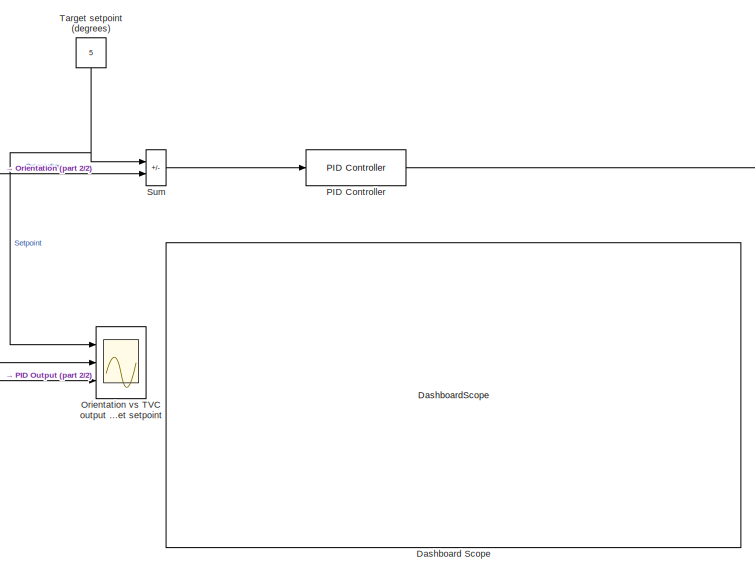
[diagram: root canvas - part 1/2, right side, full height]
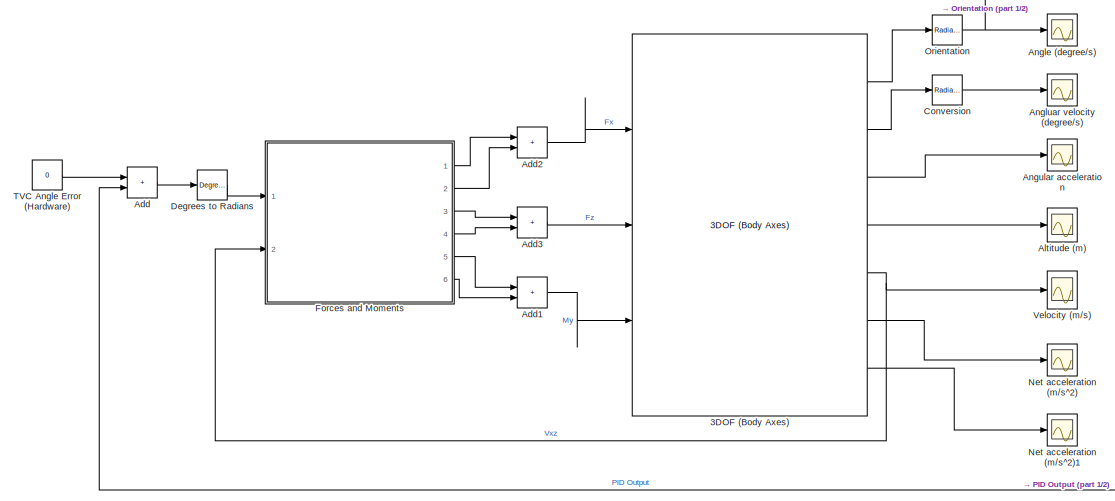
[diagram: root canvas - part 2/2, middle left region]
MODEL slx_54727770b3d1
KIND model
CONFIG AbsTol = auto
CONFIG EnableMultiTasking = off
CONFIG FixedStep = auto
CONFIG MaxStep = auto
CONFIG MinStep = auto
CONFIG RelTol = 1e-3
CONFIG SampleTimeConstraint = Unconstrained
CONFIG SolverName = VariableStepAuto
CONFIG StartTime = 0.0
CONFIG StopTime = 3.5
BLOCK [Reference] 3DOF (Body Axes)  REF=shared3dof/3DOF (Body Axes)
  Ports = [3, 7]
  SourceBlock = shared3dof/3DOF (Body Axes)
  SourceProductBaseCode = AE,PW,MT,UV,VE,VP
  SourceType = 3DOF EoM
BLOCK [Sum] Add
  IconShape = rectangular
  Ports = [2, 1]
BLOCK [Sum] Add1
  IconShape = rectangular
  Ports = [2, 1]
BLOCK [Sum] Add2
  IconShape = rectangular
  Ports = [2, 1]
BLOCK [Sum] Add3
  IconShape = rectangular
  Ports = [2, 1]
BLOCK [Scope] Altitude (m)
  Floating = off
  NumInputPorts = 1
  Ports = [1]
  ScopeSpecificationString = Simulink.scopes.TimeScopeBlockCfg('CurrentConfiguration', extmgr.ConfigurationSet(extmgr.Configuration('Core','General UI',true),extmgr.Configuration('Core','Source UI',true),extmgr.Configuration('Sources','WiredSimulink',true,'DataLoggingVariableName','ScopeData5'),extmgr.Configuration('Visuals','Time Domain',true,'SerializedDisplays',{struct('MinYLimReal','-2.34632','MaxYLimReal','19.45799','YLa...<+1545ch>
BLOCK [Scope] Angle (degree//s)
  Floating = off
  NumInputPorts = 1
  Ports = [1]
  ScopeSpecificationString = Simulink.scopes.TimeScopeBlockCfg('CurrentConfiguration', extmgr.ConfigurationSet(extmgr.Configuration('Core','General UI',true),extmgr.Configuration('Core','Source UI',true),extmgr.Configuration('Sources','WiredSimulink',true),extmgr.Configuration('Visuals','Time Domain',true,'SerializedDisplays',{struct('MinYLimReal','-1.09675','MaxYLimReal','9.87075','YLabelReal','','MinYLimMag','0.00000','MaxY...<+1385ch>
BLOCK [Scope] Angluar velocity (degree//s)
  Floating = off
  NumInputPorts = 1
  Ports = [1]
  ScopeSpecificationString = Simulink.scopes.TimeScopeBlockCfg('CurrentConfiguration', extmgr.ConfigurationSet(extmgr.Configuration('Core','General UI',true),extmgr.Configuration('Core','Source UI',true),extmgr.Configuration('Sources','WiredSimulink',true,'DataLoggingVariableName','ScopeData3'),extmgr.Configuration('Visuals','Time Domain',true,'SerializedDisplays',{struct('MinYLimReal','-4.14804','MaxYLimReal','23.08094','YLa...<+1377ch>
BLOCK [Scope] Angular acceleration
  Floating = off
  NumInputPorts = 1
  Ports = [1]
  ScopeSpecificationString = Simulink.scopes.TimeScopeBlockCfg('CurrentConfiguration', extmgr.ConfigurationSet(extmgr.Configuration('Core','General UI',true),extmgr.Configuration('Core','Source UI',true),extmgr.Configuration('Sources','WiredSimulink',true,'DataLoggingVariableName','ScopeData4'),extmgr.Configuration('Visuals','Time Domain',true,'SerializedDisplays',{struct('MinYLimReal','-2.2108','MaxYLimReal','9.02372','YLabe...<+1375ch>
BLOCK [Reference] Conversion  REF=simulink_extras/Transformations/Radians
to Degrees
  Ports = [1, 1]
  SourceBlock = simulink_extras/Transformations/Radians\nto Degrees
  SourceProductBaseCode = SL
  SourceType = RadiansToDegrees
BLOCK [DashboardScope] Dashboard Scope
BLOCK [Reference] Degrees to Radians  REF=simulink_extras/Transformations/Degrees to
Radians
  Ports = [1, 1]
  SourceBlock = simulink_extras/Transformations/Degrees to\nRadians
  SourceProductBaseCode = SL
  SourceType = DegreesToRadians
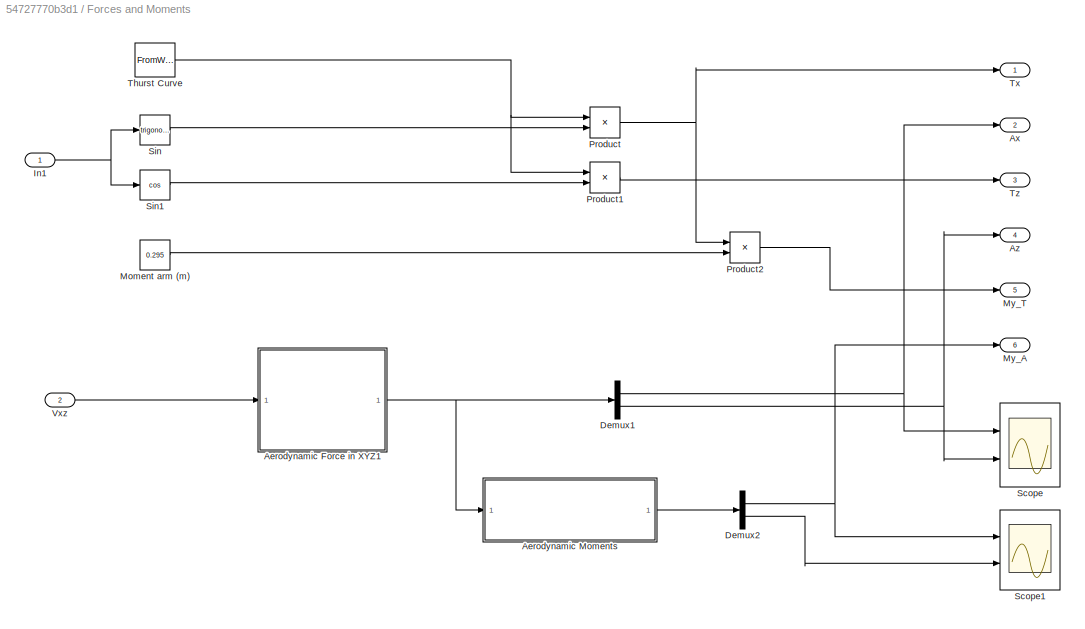
BLOCK [SubSystem] Forces and Moments
  Ports = [2, 6]
  RequestExecContextInheritance = off
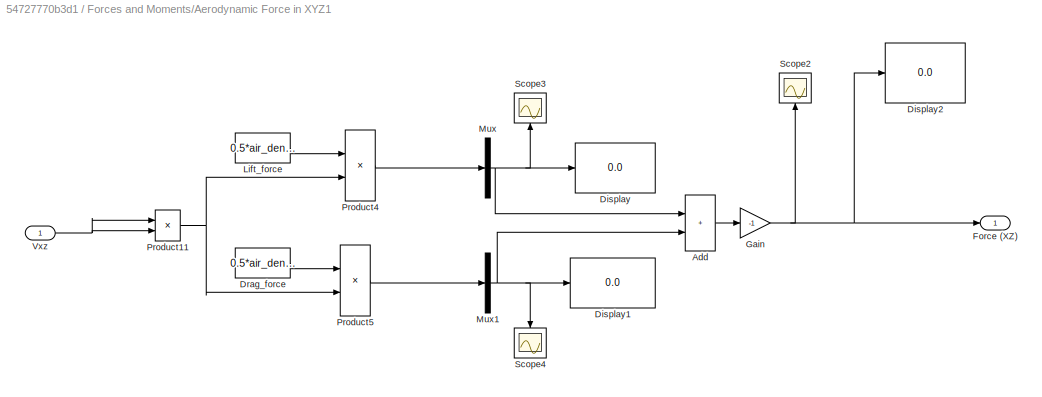
BLOCK [SubSystem] Forces and Moments/Aerodynamic Force in XYZ1
  Ports = [1, 1]
  RequestExecContextInheritance = off
BLOCK [Sum] Forces and Moments/Aerodynamic Force in XYZ1/Add
  IconShape = rectangular
  Ports = [2, 1]
BLOCK [Display] Forces and Moments/Aerodynamic Force in XYZ1/Display
  Decimation = 1
  Ports = [1]
BLOCK [Display] Forces and Moments/Aerodynamic Force in XYZ1/Display1
  Decimation = 1
  Ports = [1]
BLOCK [Display] Forces and Moments/Aerodynamic Force in XYZ1/Display2
  Decimation = 1
  Ports = [1]
BLOCK [Constant] Forces and Moments/Aerodynamic Force in XYZ1/Drag_force
  Value = 0.5*air_density*ref_area*Cd
BLOCK [Outport] Forces and Moments/Aerodynamic Force in XYZ1/Force (XZ)
BLOCK [Gain] Forces and Moments/Aerodynamic Force in XYZ1/Gain
  Gain = -1
BLOCK [Constant] Forces and Moments/Aerodynamic Force in XYZ1/Lift_force
  Value = 0.5*air_density*ref_area*Cl
BLOCK [Mux] Forces and Moments/Aerodynamic Force in XYZ1/Mux
  DisplayOption = bar
  Inputs = 1
  Ports = [1, 1]
BLOCK [Mux] Forces and Moments/Aerodynamic Force in XYZ1/Mux1
  DisplayOption = bar
  Inputs = 1
  Ports = [1, 1]
BLOCK [Product] Forces and Moments/Aerodynamic Force in XYZ1/Product11
  Ports = [2, 1]
BLOCK [Product] Forces and Moments/Aerodynamic Force in XYZ1/Product4
  Ports = [2, 1]
BLOCK [Product] Forces and Moments/Aerodynamic Force in XYZ1/Product5
  Ports = [2, 1]
BLOCK [Scope] Forces and Moments/Aerodynamic Force in XYZ1/Scope2
  Floating = off
  NameLocation = right
  NumInputPorts = 1
  Ports = [1]
  ScopeSpecificationString = Simulink.scopes.TimeScopeBlockCfg('CurrentConfiguration', extmgr.ConfigurationSet(extmgr.Configuration('Core','General UI',true),extmgr.Configuration('Core','Source UI',true),extmgr.Configuration('Sources','WiredSimulink',true,'DataLoggingVariableName','ScopeData4'),extmgr.Configuration('Visuals','Time Domain',true,'SerializedDisplays',{struct('MinYLimReal','-7.35516','MaxYLimReal','0.81724','YLab...<+1428ch>
BLOCK [Scope] Forces and Moments/Aerodynamic Force in XYZ1/Scope3
  Floating = off
  NameLocation = right
  NumInputPorts = 1
  Ports = [1]
  ScopeSpecificationString = Simulink.scopes.TimeScopeBlockCfg('CurrentConfiguration', extmgr.ConfigurationSet(extmgr.Configuration('Core','General UI',true),extmgr.Configuration('Core','Source UI',true),extmgr.Configuration('Sources','WiredSimulink',true,'DataLoggingVariableName','ScopeData1'),extmgr.Configuration('Visuals','Time Domain',true,'SerializedDisplays',{struct('MinYLimReal','-0.36776','MaxYLimReal','3.30982','YLab...<+1411ch>
BLOCK [Scope] Forces and Moments/Aerodynamic Force in XYZ1/Scope4
  Floating = off
  NameLocation = left
  NumInputPorts = 1
  Ports = [1]
  ScopeSpecificationString = Simulink.scopes.TimeScopeBlockCfg('CurrentConfiguration', extmgr.ConfigurationSet(extmgr.Configuration('Core','General UI',true),extmgr.Configuration('Core','Source UI',true),extmgr.Configuration('Sources','WiredSimulink',true,'DataLoggingVariableName','ScopeData2'),extmgr.Configuration('Visuals','Time Domain',true,'SerializedDisplays',{struct('MinYLimReal','-0.44948','MaxYLimReal','4.04534','YLab...<+1411ch>
BLOCK [Inport] Forces and Moments/Aerodynamic Force in XYZ1/Vxz
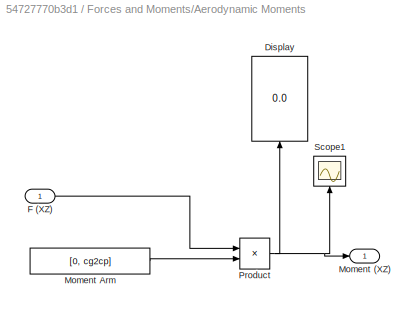
BLOCK [SubSystem] Forces and Moments/Aerodynamic Moments
  Ports = [1, 1]
  RequestExecContextInheritance = off
BLOCK [Display] Forces and Moments/Aerodynamic Moments/Display
  Decimation = 1
  NameLocation = right
  Ports = [1]
BLOCK [Inport] Forces and Moments/Aerodynamic Moments/F (XZ)
BLOCK [Outport] Forces and Moments/Aerodynamic Moments/Moment (XZ)
BLOCK [Constant] Forces and Moments/Aerodynamic Moments/Moment Arm
  Value = [0, cg2cp]
BLOCK [Product] Forces and Moments/Aerodynamic Moments/Product
  Ports = [2, 1]
BLOCK [Scope] Forces and Moments/Aerodynamic Moments/Scope1
  Floating = off
  NameLocation = right
  NumInputPorts = 1
  Ports = [1]
  ScopeSpecificationString = Simulink.scopes.TimeScopeBlockCfg('CurrentConfiguration', extmgr.ConfigurationSet(extmgr.Configuration('Core','General UI',true),extmgr.Configuration('Core','Source UI',true),extmgr.Configuration('Sources','WiredSimulink',true,'DataLoggingVariableName','ScopeData8'),extmgr.Configuration('Visuals','Time Domain',true,'SerializedDisplays',{struct('MinYLimReal','-157.92077','MaxYLimReal','234.17549','...<+1451ch>
BLOCK [Outport] Forces and Moments/Ax
  Port = 2
BLOCK [Outport] Forces and Moments/Az
  Port = 4
BLOCK [Demux] Forces and Moments/Demux1
  Outputs = 2
  Ports = [1, 2]
BLOCK [Demux] Forces and Moments/Demux2
  Outputs = 2
  Ports = [1, 2]
BLOCK [Inport] Forces and Moments/In1
BLOCK [Constant] Forces and Moments/Moment arm (m)
  Value = 0.295
BLOCK [Outport] Forces and Moments/My_A
  Port = 6
BLOCK [Outport] Forces and Moments/My_T
  Port = 5
BLOCK [Product] Forces and Moments/Product
  Ports = [2, 1]
BLOCK [Product] Forces and Moments/Product1
  Ports = [2, 1]
BLOCK [Product] Forces and Moments/Product2
  Ports = [2, 1]
BLOCK [Scope] Forces and Moments/Scope
  Floating = off
  NumInputPorts = 2
  Ports = [2]
  ScopeSpecificationString = Simulink.scopes.TimeScopeBlockCfg('CurrentConfiguration', extmgr.ConfigurationSet(extmgr.Configuration('Core','General UI',true),extmgr.Configuration('Core','Source UI',true),extmgr.Configuration('Sources','WiredSimulink',true,'DataLoggingVariableName','ScopeData3'),extmgr.Configuration('Visuals','Time Domain',true,'SerializedDisplays',{struct('MinYLimReal','-7.35516','MaxYLimReal','0.81724','YLab...<+1446ch>
BLOCK [Scope] Forces and Moments/Scope1
  Floating = off
  NumInputPorts = 2
  Ports = [2]
  ScopeSpecificationString = Simulink.scopes.TimeScopeBlockCfg('CurrentConfiguration', extmgr.ConfigurationSet(extmgr.Configuration('Core','General UI',true),extmgr.Configuration('Core','Source UI',true),extmgr.Configuration('Sources','WiredSimulink',true,'DataLoggingVariableName','ScopeData4'),extmgr.Configuration('Visuals','Time Domain',true,'SerializedDisplays',{struct('MinYLimReal','-7.26982','MaxYLimReal','0.80776','YLab...<+1446ch>
BLOCK [Trigonometry] Forces and Moments/Sin
  Ports = [1, 1]
BLOCK [Trigonometry] Forces and Moments/Sin1
  Operator = cos
  Ports = [1, 1]
BLOCK [FromWorkspace] Forces and Moments/Thurst Curve
  VariableName = F15
BLOCK [Outport] Forces and Moments/Tx
BLOCK [Outport] Forces and Moments/Tz
  Port = 3
BLOCK [Inport] Forces and Moments/Vxz
  Port = 2
BLOCK [Scope] Net acceleration (m//s^2)
  Floating = off
  NumInputPorts = 1
  Ports = [1]
  ScopeSpecificationString = Simulink.scopes.TimeScopeBlockCfg('CurrentConfiguration', extmgr.ConfigurationSet(extmgr.Configuration('Core','General UI',true),extmgr.Configuration('Core','Source UI',true),extmgr.Configuration('Sources','WiredSimulink',true,'DataLoggingVariableName','ScopeData7'),extmgr.Configuration('Visuals','Time Domain',true,'SerializedDisplays',{struct('MinYLimReal','-0.59767','MaxYLimReal','5.89988','YLab...<+1402ch>
BLOCK [Scope] Net acceleration (m//s^2)1
  Floating = off
  NumInputPorts = 1
  Ports = [1]
  ScopeSpecificationString = Simulink.scopes.TimeScopeBlockCfg('CurrentConfiguration', extmgr.ConfigurationSet(extmgr.Configuration('Core','General UI',true),extmgr.Configuration('Core','Source UI',true),extmgr.Configuration('Sources','WiredSimulink',true,'DataLoggingVariableName','ScopeData6'),extmgr.Configuration('Visuals','Time Domain',true,'SerializedDisplays',{struct('MinYLimReal','-18.55788','MaxYLimReal','22.73037','YL...<+1408ch>
BLOCK [Reference] Orientation  REF=simulink_extras/Transformations/Radians
to Degrees
  Ports = [1, 1]
  SourceBlock = simulink_extras/Transformations/Radians\nto Degrees
  SourceProductBaseCode = SL
  SourceType = RadiansToDegrees
BLOCK [Scope] Orientation vs TVC output vs Target setpoint
  Floating = off
  NumInputPorts = 3
  Ports = [3]
  ScopeSpecificationString = Simulink.scopes.TimeScopeBlockCfg('CurrentConfiguration', extmgr.ConfigurationSet(extmgr.Configuration('Core','General UI',true),extmgr.Configuration('Core','Source UI',true),extmgr.Configuration('Sources','WiredSimulink',true,'DataLoggingVariableName','ScopeData1'),extmgr.Configuration('Visuals','Time Domain',true,'SerializedDisplays',{struct('MinYLimReal','-3.95078','MaxYLimReal','10.18786','YLa...<+1450ch>
BLOCK [Reference] PID Controller  REF=pid_lib/PID Controller
  Ports = [1, 1]
  SourceBlock = pid_lib/PID Controller
  SourceProductBaseCode = SL
  SourceType = PID 1dof
BLOCK [Sum] Sum
  IconShape = rectangular
  Inputs = +-
  Ports = [2, 1]
BLOCK [Constant] TVC Angle Error (Hardware)
  Value = 0
BLOCK [Constant] Target setpoint (degrees)
  NameLocation = left
  Value = 5
BLOCK [Scope] Velocity (m//s)
  Floating = off
  NumInputPorts = 1
  Ports = [1]
  ScopeSpecificationString = Simulink.scopes.TimeScopeBlockCfg('CurrentConfiguration', extmgr.ConfigurationSet(extmgr.Configuration('Core','General UI',true),extmgr.Configuration('Core','Source UI',true),extmgr.Configuration('Sources','WiredSimulink',true,'DataLoggingVariableName','ScopeData1'),extmgr.Configuration('Visuals','Time Domain',true,'SerializedDisplays',{struct('MinYLimReal','-1.68076','MaxYLimReal','7.18373','YLab...<+1399ch>
LINE 3DOF (Body Axes):1 -> Orientation:1
LINE 3DOF (Body Axes):2 -> Conversion:1
LINE 3DOF (Body Axes):3 -> Angular acceleration:1
LINE 3DOF (Body Axes):4 -> Altitude (m):1
NET 3DOF (Body Axes):5 -> Forces and Moments:2, Velocity (m//s):1
LINE 3DOF (Body Axes):6 -> Net acceleration (m//s^2):1
LINE 3DOF (Body Axes):7 -> Net acceleration (m//s^2)1:1
LINE Add1:1 -> 3DOF (Body Axes):3
LINE Add2:1 -> 3DOF (Body Axes):1
LINE Add3:1 -> 3DOF (Body Axes):2
LINE Add:1 -> Degrees to Radians:1
LINE Conversion:1 -> Angluar velocity (degree//s):1
LINE Degrees to Radians:1 -> Forces and Moments:1
LINE Forces and Moments/Aerodynamic Force in XYZ1/Add:1 -> Forces and Moments/Aerodynamic Force in XYZ1/Gain:1
LINE Forces and Moments/Aerodynamic Force in XYZ1/Drag_force:1 -> Forces and Moments/Aerodynamic Force in XYZ1/Product5:1
NET Forces and Moments/Aerodynamic Force in XYZ1/Gain:1 -> Forces and Moments/Aerodynamic Force in XYZ1/Display2:1, Forces and Moments/Aerodynamic Force in XYZ1/Force (XZ):1, Forces and Moments/Aerodynamic Force in XYZ1/Scope2:1
LINE Forces and Moments/Aerodynamic Force in XYZ1/Lift_force:1 -> Forces and Moments/Aerodynamic Force in XYZ1/Product4:1
NET Forces and Moments/Aerodynamic Force in XYZ1/Mux1:1 -> Forces and Moments/Aerodynamic Force in XYZ1/Add:2, Forces and Moments/Aerodynamic Force in XYZ1/Display1:1, Forces and Moments/Aerodynamic Force in XYZ1/Scope4:1
NET Forces and Moments/Aerodynamic Force in XYZ1/Mux:1 -> Forces and Moments/Aerodynamic Force in XYZ1/Add:1, Forces and Moments/Aerodynamic Force in XYZ1/Display:1, Forces and Moments/Aerodynamic Force in XYZ1/Scope3:1
NET Forces and Moments/Aerodynamic Force in XYZ1/Product11:1 -> Forces and Moments/Aerodynamic Force in XYZ1/Product4:2, Forces and Moments/Aerodynamic Force in XYZ1/Product5:2
LINE Forces and Moments/Aerodynamic Force in XYZ1/Product4:1 -> Forces and Moments/Aerodynamic Force in XYZ1/Mux:1
LINE Forces and Moments/Aerodynamic Force in XYZ1/Product5:1 -> Forces and Moments/Aerodynamic Force in XYZ1/Mux1:1
NET Forces and Moments/Aerodynamic Force in XYZ1/Vxz:1 -> Forces and Moments/Aerodynamic Force in XYZ1/Product11:1, Forces and Moments/Aerodynamic Force in XYZ1/Product11:2
NET Forces and Moments/Aerodynamic Force in XYZ1:1 -> Forces and Moments/Aerodynamic Moments:1, Forces and Moments/Demux1:1
LINE Forces and Moments/Aerodynamic Moments/F (XZ):1 -> Forces and Moments/Aerodynamic Moments/Product:1
LINE Forces and Moments/Aerodynamic Moments/Moment Arm:1 -> Forces and Moments/Aerodynamic Moments/Product:2
NET Forces and Moments/Aerodynamic Moments/Product:1 -> Forces and Moments/Aerodynamic Moments/Display:1, Forces and Moments/Aerodynamic Moments/Moment (XZ):1, Forces and Moments/Aerodynamic Moments/Scope1:1
LINE Forces and Moments/Aerodynamic Moments:1 -> Forces and Moments/Demux2:1
NET Forces and Moments/Demux1:1 -> Forces and Moments/Ax:1, Forces and Moments/Scope:1
NET Forces and Moments/Demux1:2 -> Forces and Moments/Az:1, Forces and Moments/Scope:2
NET Forces and Moments/Demux2:1 -> Forces and Moments/My_A:1, Forces and Moments/Scope1:1
LINE Forces and Moments/Demux2:2 -> Forces and Moments/Scope1:2
NET Forces and Moments/In1:1 -> Forces and Moments/Sin1:1, Forces and Moments/Sin:1
LINE Forces and Moments/Moment arm (m):1 -> Forces and Moments/Product2:2
LINE Forces and Moments/Product1:1 -> Forces and Moments/Tz:1
LINE Forces and Moments/Product2:1 -> Forces and Moments/My_T:1
NET Forces and Moments/Product:1 -> Forces and Moments/Product2:1, Forces and Moments/Tx:1
LINE Forces and Moments/Sin1:1 -> Forces and Moments/Product1:2
LINE Forces and Moments/Sin:1 -> Forces and Moments/Product:2
NET Forces and Moments/Thurst Curve:1 -> Forces and Moments/Product1:1, Forces and Moments/Product:1
LINE Forces and Moments/Vxz:1 -> Forces and Moments/Aerodynamic Force in XYZ1:1
LINE Forces and Moments:1 -> Add2:1
LINE Forces and Moments:2 -> Add2:2
LINE Forces and Moments:3 -> Add3:1
LINE Forces and Moments:4 -> Add3:2
LINE Forces and Moments:5 -> Add1:1
LINE Forces and Moments:6 -> Add1:2
NET Orientation:1 -> Angle (degree//s):1, Orientation vs TVC output vs Target setpoint:2, Sum:2
NET PID Controller:1 -> Add:2, Orientation vs TVC output vs Target setpoint:3
LINE Sum:1 -> PID Controller:1
LINE TVC Angle Error (Hardware):1 -> Add:1
NET Target setpoint (degrees):1 -> Orientation vs TVC output vs Target setpoint:1, Sum:1
note: NET lines group one-source signal fan-out (src -> all destinations, sorted); 1:1 wires keep LINE
